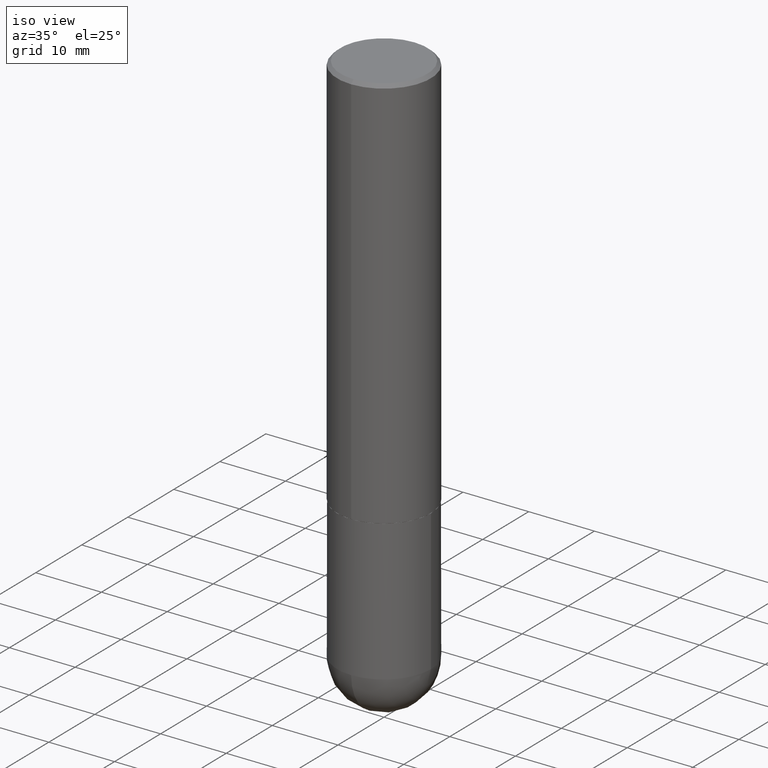
[diagram: clean part render]
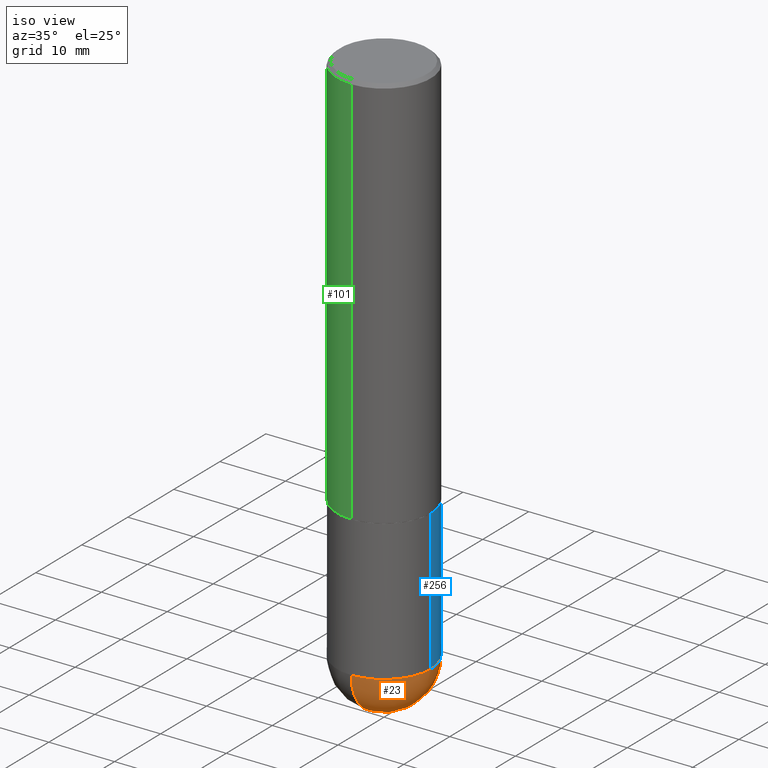
[diagram: same view with three faces highlighted in distinct colors, each labeled with its STEP entity id]
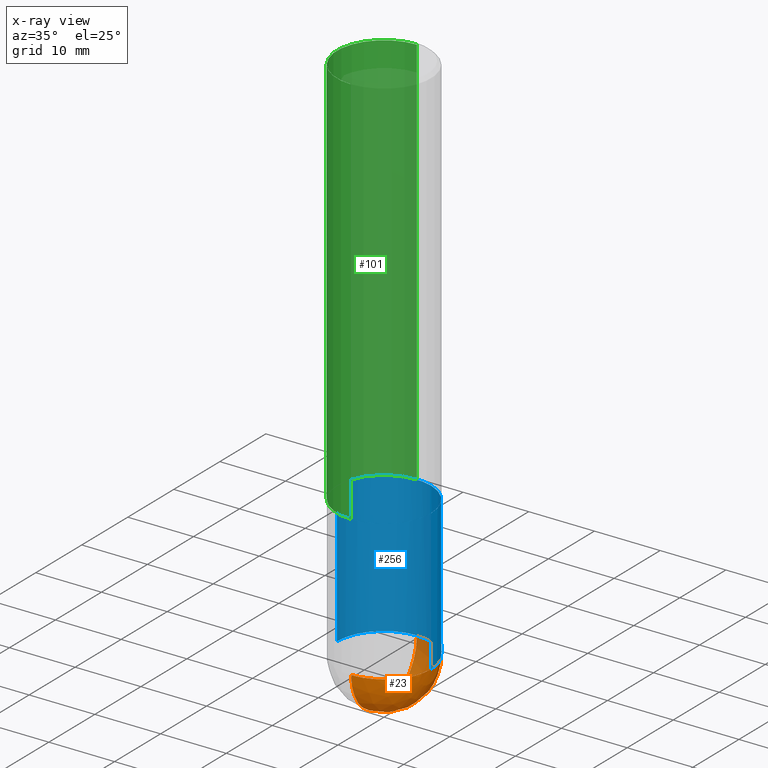
[diagram: x-ray of the same camera — body ghosted, the three highlighted faces saturated]
A machine part, iso view with three faces highlighted in distinct colors.
The next image is the same camera in x-ray (body ghosted, the three faces saturated) — at least one of them is partly hidden behind the body in this view.
Their STEP definitions:

[orange] entity #23 — the highlighted spherical surface has radius 7.1438 mm.
#2 = VERTEX_POINT ( 'NONE', #383 ) ;
#8 = EDGE_CURVE ( 'NONE', #71, #2, #405, .T. ) ;
#23 = ADVANCED_FACE ( 'NONE', ( #92 ), #89, .T. ) ;
#33 = ORIENTED_EDGE ( 'NONE', *, *, #8, .F. ) ;
#47 = DIRECTION ( 'NONE',  ( 6.982962677686265133E-15, 1.000000000000000000, 0.000000000000000000 ) ) ;
#50 = AXIS2_PLACEMENT_3D ( 'NONE', #277, #309, #252 ) ;
#52 = CIRCLE ( 'NONE', #121, 0.2812500000000000555 ) ;
#57 = CARTESIAN_POINT ( 'NONE',  ( 1.963958253099340610E-15, 0.2812499999999886757, -3.218750000000000888 ) ) ;
#58 = DIRECTION ( 'NONE',  ( -2.445468806185136597E-29, 3.491481338843145583E-15, 1.000000000000000000 ) ) ;
#66 = CARTESIAN_POINT ( 'NONE',  ( 8.240046819675677659E-29, -1.267714545847805119E-14, -3.500000000000000000 ) ) ;
#68 = DIRECTION ( 'NONE',  ( 6.982962677686265922E-15, 1.000000000000000000, -3.885294924322502955E-15 ) ) ;
#69 = ORIENTED_EDGE ( 'NONE', *, *, #261, .T. ) ;
#71 = VERTEX_POINT ( 'NONE', #66 ) ;
#72 = VERTEX_POINT ( 'NONE', #57 ) ;
#73 = CIRCLE ( 'NONE', #120, 0.2812500000000003331 ) ;
#89 = SPHERICAL_SURFACE ( 'NONE', #173, 0.2812500000000003331 ) ;
#92 = FACE_OUTER_BOUND ( 'NONE', #161, .T. ) ;
#100 = VERTEX_POINT ( 'NONE', #181 ) ;
#108 = CARTESIAN_POINT ( 'NONE',  ( 7.871352719908407300E-29, -1.123820555940137375E-14, -3.218749999999999556 ) ) ;
#114 = CARTESIAN_POINT ( 'NONE',  ( 7.540232941994521053E-29, -1.171238792754142562E-14, -3.218749999999999556 ) ) ;
#120 = AXIS2_PLACEMENT_3D ( 'NONE', #114, #175, #47 ) ;
#121 = AXIS2_PLACEMENT_3D ( 'NONE', #108, #260, #205 ) ;
#156 = DIRECTION ( 'NONE',  ( -1.000000000000000000, 6.982962677686265922E-15, -4.883557194083112901E-29 ) ) ;
#161 = EDGE_LOOP ( 'NONE', ( #33, #69, #285, #227 ) ) ;
#173 = AXIS2_PLACEMENT_3D ( 'NONE', #354, #156, #68 ) ;
#175 = DIRECTION ( 'NONE',  ( 1.000000000000000000, -6.982962677686265922E-15, 4.883557194083112340E-29 ) ) ;
#179 = DIRECTION ( 'NONE',  ( 1.000000000000000000, -6.982962677686268288E-15, 0.000000000000000000 ) ) ;
#181 = CARTESIAN_POINT ( 'NONE',  ( 0.2812500000000000555, -1.172919512267618602E-14, -3.218749999999999556 ) ) ;
#205 = DIRECTION ( 'NONE',  ( 1.000000000000000000, -6.982962677686268288E-15, 0.000000000000000000 ) ) ;
#227 = ORIENTED_EDGE ( 'NONE', *, *, #350, .F. ) ;
#252 = DIRECTION ( 'NONE',  ( -7.105427357601001859E-15, -1.000000000000000000, 0.000000000000000000 ) ) ;
#260 = DIRECTION ( 'NONE',  ( -2.445468806185136597E-29, 3.491481338843145583E-15, 1.000000000000000000 ) ) ;
#261 = EDGE_CURVE ( 'NONE', #71, #72, #73, .T. ) ;
#277 = CARTESIAN_POINT ( 'NONE',  ( 7.540232941994521053E-29, -1.171238792754142562E-14, -3.218749999999999556 ) ) ;
#285 = ORIENTED_EDGE ( 'NONE', *, *, #321, .F. ) ;
#291 = CIRCLE ( 'NONE', #342, 0.2812500000000000555 ) ;
#309 = DIRECTION ( 'NONE',  ( -1.000000000000000000, 7.105427357601001070E-15, -4.926315508542082329E-29 ) ) ;
#321 = EDGE_CURVE ( 'NONE', #100, #72, #291, .T. ) ;
#342 = AXIS2_PLACEMENT_3D ( 'NONE', #345, #58, #179 ) ;
#345 = CARTESIAN_POINT ( 'NONE',  ( 7.871352719908407300E-29, -1.123820555940137375E-14, -3.218749999999999556 ) ) ;
#350 = EDGE_CURVE ( 'NONE', #2, #100, #52, .T. ) ;
#354 = CARTESIAN_POINT ( 'NONE',  ( 7.540232941994521053E-29, -1.171238792754142562E-14, -3.218749999999999556 ) ) ;
#383 = CARTESIAN_POINT ( 'NONE',  ( -1.998401444325206042E-15, -0.2812500000000116573, -3.218749999999998668 ) ) ;
#405 = CIRCLE ( 'NONE', #50, 0.2812500000000003331 ) ;

[blue] entity #256 — the highlighted cylindrical surface (partial cylindrical patch) has radius 7.1438 mm, axis along (-0, 0, 1).
#5 = VERTEX_POINT ( 'NONE', #91 ) ;
#15 = ORIENTED_EDGE ( 'NONE', *, *, #55, .F. ) ;
#53 = DIRECTION ( 'NONE',  ( -2.445468806185136597E-29, 3.491481338843145583E-15, 1.000000000000000000 ) ) ;
#55 = EDGE_CURVE ( 'NONE', #100, #357, #412, .T. ) ;
#57 = CARTESIAN_POINT ( 'NONE',  ( 1.963958253099340610E-15, 0.2812499999999886757, -3.218750000000000888 ) ) ;
#58 = DIRECTION ( 'NONE',  ( -2.445468806185136597E-29, 3.491481338843145583E-15, 1.000000000000000000 ) ) ;
#63 = DIRECTION ( 'NONE',  ( -2.445468806185136877E-29, 3.491481338843145188E-15, 1.000000000000000000 ) ) ;
#72 = VERTEX_POINT ( 'NONE', #57 ) ;
#74 = EDGE_CURVE ( 'NONE', #5, #164, #347, .T. ) ;
#76 = VECTOR ( 'NONE', #63, 39.37007874015748143 ) ;
#91 = CARTESIAN_POINT ( 'NONE',  ( -0.2812500000000000555, -7.766835425251639371E-15, -3.218749999999999556 ) ) ;
#100 = VERTEX_POINT ( 'NONE', #181 ) ;
#107 = EDGE_CURVE ( 'NONE', #357, #164, #373, .T. ) ;
#111 = DIRECTION ( 'NONE',  ( -2.445468806185136597E-29, 3.491481338843145583E-15, 1.000000000000000000 ) ) ;
#115 = CIRCLE ( 'NONE', #305, 0.2812500000000000555 ) ;
#116 = ORIENTED_EDGE ( 'NONE', *, *, #107, .F. ) ;
#122 = CYLINDRICAL_SURFACE ( 'NONE', #197, 0.2812500000000000555 ) ;
#123 = CARTESIAN_POINT ( 'NONE',  ( 0.2812500000000000555, -1.963958253099262907E-15, 1.371424718192607012E-29 ) ) ;
#129 = ORIENTED_EDGE ( 'NONE', *, *, #368, .T. ) ;
#135 = CARTESIAN_POINT ( 'NONE',  ( 0.2812500000000000000, -1.025622643285173184E-14, -2.374999999999999556 ) ) ;
#150 = CARTESIAN_POINT ( 'NONE',  ( 5.807988414689698296E-29, -8.292268179752468540E-15, -2.374999999999999556 ) ) ;
#154 = DIRECTION ( 'NONE',  ( -2.445468806185136597E-29, 3.491481338843145583E-15, 1.000000000000000000 ) ) ;
#164 = VERTEX_POINT ( 'NONE', #255 ) ;
#179 = DIRECTION ( 'NONE',  ( 1.000000000000000000, -6.982962677686268288E-15, 0.000000000000000000 ) ) ;
#181 = CARTESIAN_POINT ( 'NONE',  ( 0.2812500000000000555, -1.172919512267618602E-14, -3.218749999999999556 ) ) ;
#197 = AXIS2_PLACEMENT_3D ( 'NONE', #401, #111, #330 ) ;
#208 = FACE_OUTER_BOUND ( 'NONE', #242, .T. ) ;
#221 = VECTOR ( 'NONE', #249, 39.37007874015748143 ) ;
#225 = ORIENTED_EDGE ( 'NONE', *, *, #321, .T. ) ;
#234 = ORIENTED_EDGE ( 'NONE', *, *, #74, .T. ) ;
#242 = EDGE_LOOP ( 'NONE', ( #129, #234, #116, #15, #225 ) ) ;
#249 = DIRECTION ( 'NONE',  ( -2.445468806185136877E-29, 3.491481338843145188E-15, 1.000000000000000000 ) ) ;
#255 = CARTESIAN_POINT ( 'NONE',  ( -0.2812500000000000000, -7.766835425251637793E-15, -2.374999999999999556 ) ) ;
#256 = ADVANCED_FACE ( 'NONE', ( #208 ), #122, .T. ) ;
#262 = DIRECTION ( 'NONE',  ( 1.000000000000000000, -6.982962677686268288E-15, 0.000000000000000000 ) ) ;
#280 = DIRECTION ( 'NONE',  ( 1.000000000000000000, -6.982962677686269866E-15, 0.000000000000000000 ) ) ;
#291 = CIRCLE ( 'NONE', #342, 0.2812500000000000555 ) ;
#305 = AXIS2_PLACEMENT_3D ( 'NONE', #365, #53, #262 ) ;
#317 = CARTESIAN_POINT ( 'NONE',  ( -0.2812500000000000555, 1.998401444325282167E-15, -1.383450494134192269E-29 ) ) ;
#321 = EDGE_CURVE ( 'NONE', #100, #72, #291, .T. ) ;
#330 = DIRECTION ( 'NONE',  ( 1.000000000000000000, -6.982962677686266711E-15, 4.876176775795935232E-29 ) ) ;
#342 = AXIS2_PLACEMENT_3D ( 'NONE', #345, #58, #179 ) ;
#345 = CARTESIAN_POINT ( 'NONE',  ( 7.871352719908407300E-29, -1.123820555940137375E-14, -3.218749999999999556 ) ) ;
#347 = LINE ( 'NONE', #317, #221 ) ;
#357 = VERTEX_POINT ( 'NONE', #135 ) ;
#365 = CARTESIAN_POINT ( 'NONE',  ( 7.871352719908407300E-29, -1.123820555940137375E-14, -3.218749999999999556 ) ) ;
#368 = EDGE_CURVE ( 'NONE', #72, #5, #115, .T. ) ;
#373 = CIRCLE ( 'NONE', #379, 0.2812500000000000000 ) ;
#379 = AXIS2_PLACEMENT_3D ( 'NONE', #150, #154, #280 ) ;
#401 = CARTESIAN_POINT ( 'NONE',  ( 0.000000000000000000, 0.000000000000000000, 0.000000000000000000 ) ) ;
#412 = LINE ( 'NONE', #123, #76 ) ;

[green] entity #101 — the highlighted cylindrical surface (partial cylindrical patch) has radius 7.1438 mm, axis along (-0, 0, 1).
#1 = CARTESIAN_POINT ( 'NONE',  ( -1.963958253099205714E-15, -0.2812500000000085487, -2.373999999999998334 ) ) ;
#3 = DIRECTION ( 'NONE',  ( -6.982962677686265133E-15, -1.000000000000000000, 3.885294924322504533E-15 ) ) ;
#10 = EDGE_CURVE ( 'NONE', #56, #35, #275, .T. ) ;
#22 = AXIS2_PLACEMENT_3D ( 'NONE', #157, #284, #3 ) ;
#35 = VERTEX_POINT ( 'NONE', #349 ) ;
#37 = ORIENTED_EDGE ( 'NONE', *, *, #186, .T. ) ;
#56 = VERTEX_POINT ( 'NONE', #214 ) ;
#101 = ADVANCED_FACE ( 'NONE', ( #251 ), #124, .T. ) ;
#124 = CYLINDRICAL_SURFACE ( 'NONE', #191, 0.2812500000000001110 ) ;
#125 = DIRECTION ( 'NONE',  ( -2.445971078057962310E-29, 3.490762056933720116E-15, 1.000000000000000000 ) ) ;
#149 = VERTEX_POINT ( 'NONE', #1 ) ;
#151 = CARTESIAN_POINT ( 'NONE',  ( -1.929515061873242463E-15, -0.2812500000000000555, -0.01999999999999908101 ) ) ;
#157 = CARTESIAN_POINT ( 'NONE',  ( 5.806735339309601077E-29, -8.287069123160647874E-15, -2.373999999999999222 ) ) ;
#162 = ORIENTED_EDGE ( 'NONE', *, *, #194, .F. ) ;
#167 = EDGE_CURVE ( 'NONE', #149, #312, #356, .T. ) ;
#180 = DIRECTION ( 'NONE',  ( -2.445971078057962310E-29, 3.490762056933719721E-15, 1.000000000000000000 ) ) ;
#184 = CIRCLE ( 'NONE', #253, 0.2812499999999999445 ) ;
#186 = EDGE_CURVE ( 'NONE', #56, #149, #271, .T. ) ;
#189 = DIRECTION ( 'NONE',  ( -2.445971078057962310E-29, 3.490762056933720116E-15, 1.000000000000000000 ) ) ;
#191 = AXIS2_PLACEMENT_3D ( 'NONE', #381, #387, #273 ) ;
#194 = EDGE_CURVE ( 'NONE', #35, #312, #184, .T. ) ;
#200 = ORIENTED_EDGE ( 'NONE', *, *, #167, .T. ) ;
#214 = CARTESIAN_POINT ( 'NONE',  ( 1.998401444325312144E-15, 0.2812499999999919509, -2.374000000000000554 ) ) ;
#235 = DIRECTION ( 'NONE',  ( -6.982962677686266711E-15, -1.000000000000000000, 3.490694658571003593E-15 ) ) ;
#251 = FACE_OUTER_BOUND ( 'NONE', #388, .T. ) ;
#253 = AXIS2_PLACEMENT_3D ( 'NONE', #366, #180, #235 ) ;
#271 = CIRCLE ( 'NONE', #22, 0.2812500000000002220 ) ;
#273 = DIRECTION ( 'NONE',  ( -6.982962677686266711E-15, -1.000000000000000000, 3.490762056933719721E-15 ) ) ;
#275 = LINE ( 'NONE', #377, #315 ) ;
#284 = DIRECTION ( 'NONE',  ( -2.445971078057962310E-29, 3.490762056933719721E-15, 1.000000000000000000 ) ) ;
#287 = ORIENTED_EDGE ( 'NONE', *, *, #10, .F. ) ;
#312 = VERTEX_POINT ( 'NONE', #151 ) ;
#315 = VECTOR ( 'NONE', #125, 39.37007874015748143 ) ;
#326 = VECTOR ( 'NONE', #189, 39.37007874015748143 ) ;
#349 = CARTESIAN_POINT ( 'NONE',  ( 1.963958253099262512E-15, 0.2812499999999998890, -0.02000000000000104472 ) ) ;
#356 = LINE ( 'NONE', #389, #326 ) ;
#366 = CARTESIAN_POINT ( 'NONE',  ( 4.891942156115939858E-31, -6.981524113867461777E-17, -0.02000000000000006287 ) ) ;
#377 = CARTESIAN_POINT ( 'NONE',  ( 1.998401444325282167E-15, 0.2812500000000001110, -9.817768285126090044E-16 ) ) ;
#381 = CARTESIAN_POINT ( 'NONE',  ( 0.000000000000000000, 0.000000000000000000, 0.000000000000000000 ) ) ;
#387 = DIRECTION ( 'NONE',  ( -2.445971078057962310E-29, 3.490762056933719721E-15, 1.000000000000000000 ) ) ;
#388 = EDGE_LOOP ( 'NONE', ( #287, #37, #200, #162 ) ) ;
#389 = CARTESIAN_POINT ( 'NONE',  ( -1.963958253099263301E-15, -0.2812500000000001110, 9.817768285126090044E-16 ) ) ;